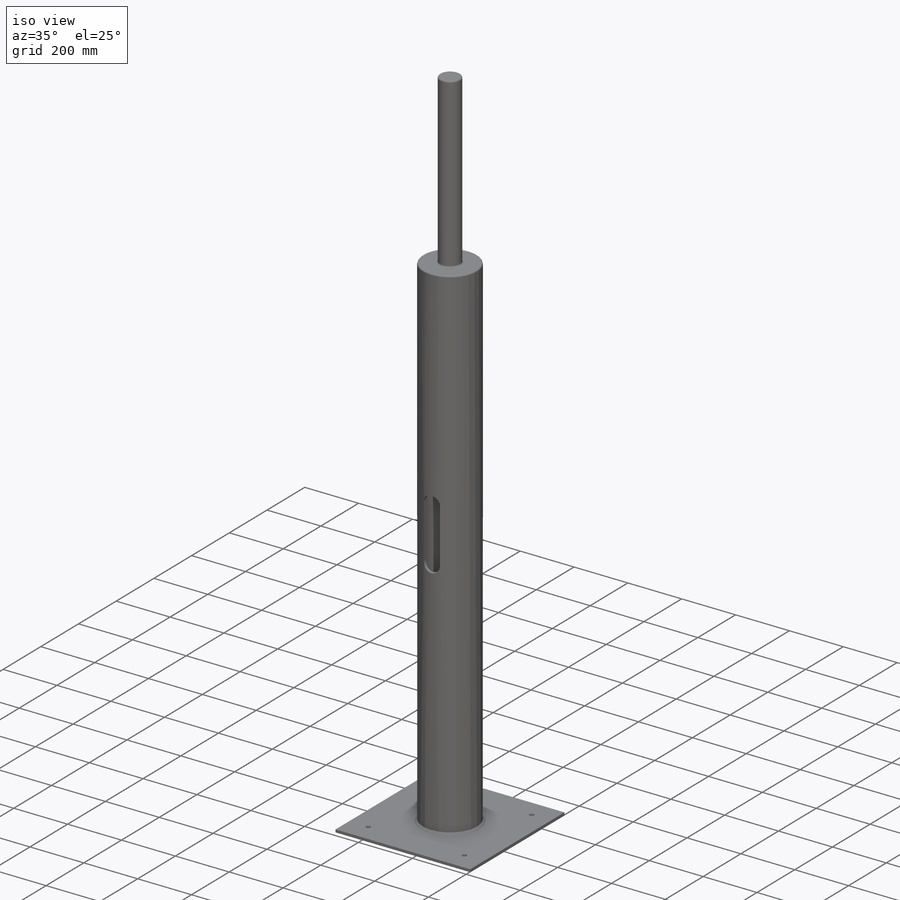
[diagram: iso view]
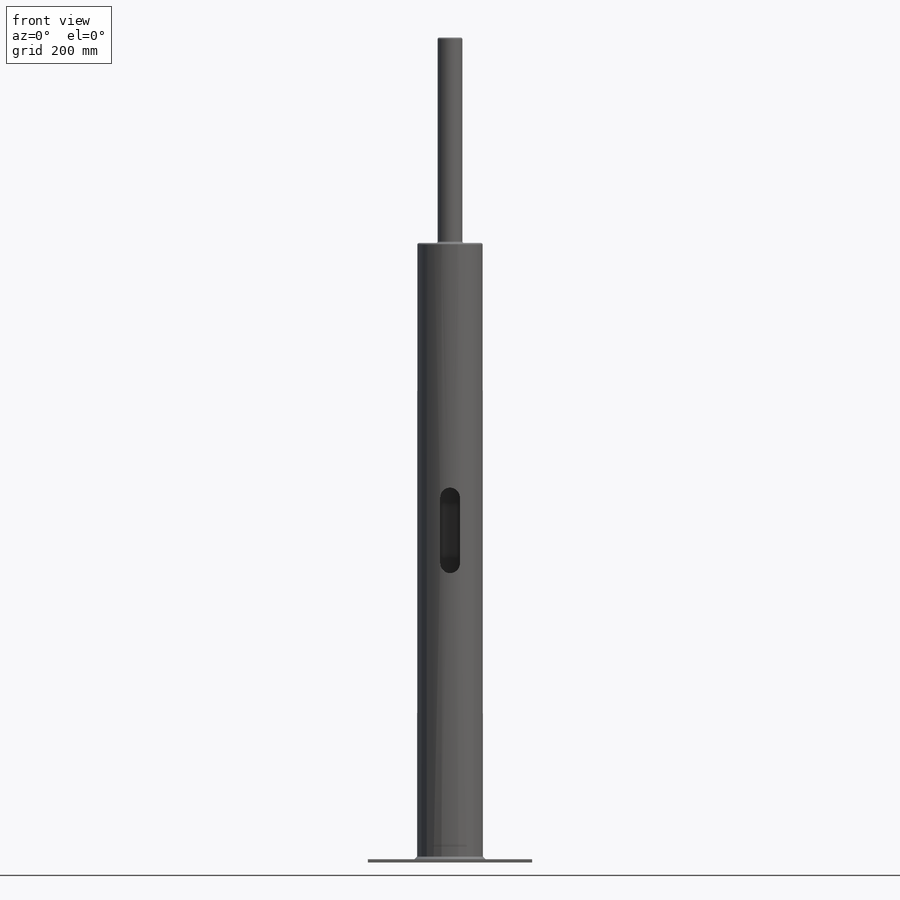
[diagram: front view]
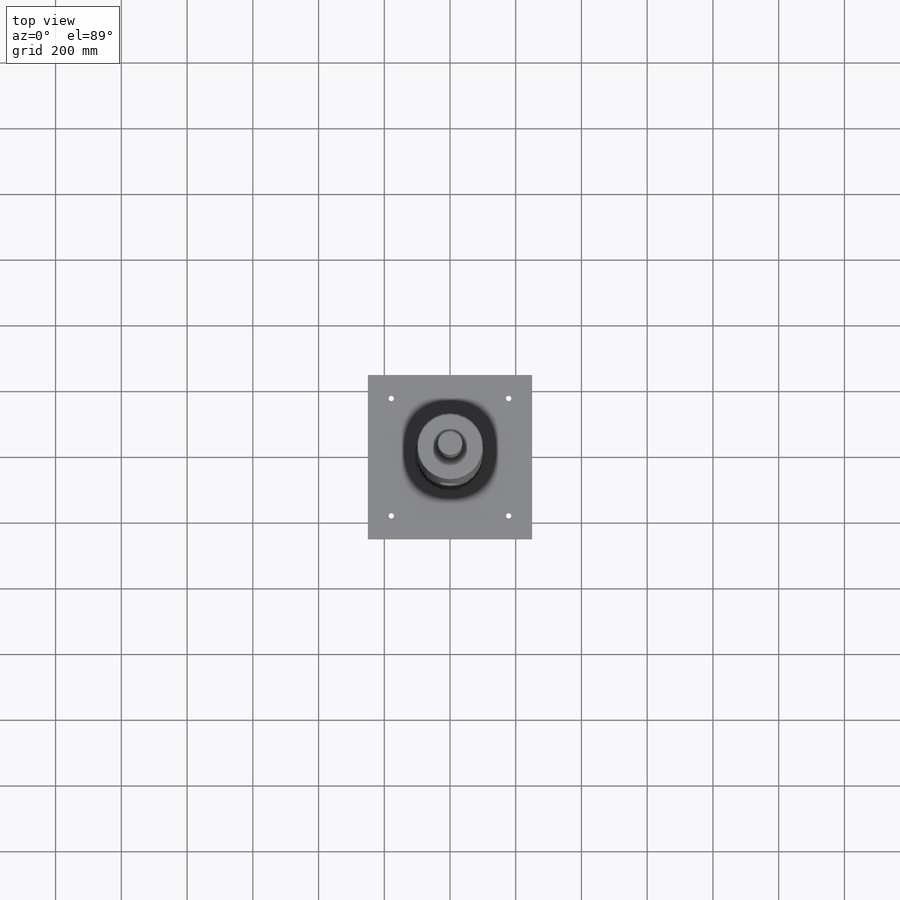
[diagram: top view]
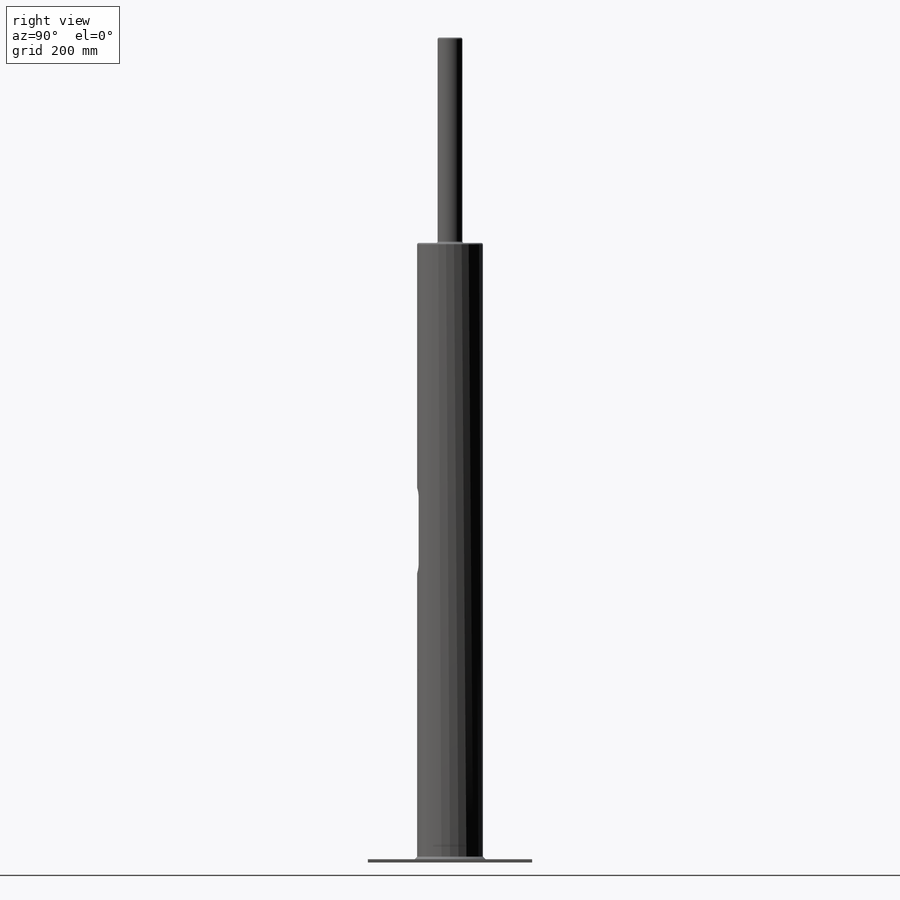
[diagram: right view]
SOLIDWORKS PART (.sldprt)
format: sldprt  version: not decoded by parser v0  size: 560,128 bytes
history: native  units: mm
features: sketch x5, material x1, revolve x1, shell x1, cut_extrude x1, fillet x1, extrude x1, hole x1 + 1 further entry (+17 scaffold rows collapsed)
feature tree (30):
  scaffold x17  (default folders/planes/origin — collapsed)
  material  "1060 Alloy"
  "Cut-List-Item2"
  sketch  "Sketch1"  dims[OVERALL HEIGHT=5000.0mm TOP HEIGHT[DRIVEN]=1250.0mm TOP DIAMETER[FIXED]=37.5mm BASE DIAMETER=170.0mm]
  revolve  "Revolve1"  Angle=360deg
  sketch  "Sketch2"  dims[SLOT=40.0mm D1=1000.0mm D2=300.0mm D3=200.0mm]
  shell  "Shell1"  Thickness=10mm
  cut_extrude  "Cut-Extrude1"  [1 undecoded]
  sketch  "Sketch3"  dims[BASE PLATE LENGTH=700.0mm]
  fillet  "Fillet2"  Radius=5mm
  extrude  "Boss-Extrude1"  Depth=16mm BASE PLATE THICKNESS=16mm
  hole  "Ø0.16 (0.16) Diameter Hole1"  Diameter=16mm Depth=16mm
  sketch  "Sketch5"  dims[c1.D1=50.0mm c1.D2=50.0mm c1.D3=100.0mm c1.D4=500.0mm c2.D3=500.0mm]
  sketch  "Sketch4"  dims[hole-wizard template sketch: 59 standard entries collapsed; hole parameters kept: c18.Thru Hole Dia.=16.0mm c18.Thru Hole Depth=16.0mm]
decode coverage: 10 of 11 modeling features carry decoded parameters; 1 rows unclassified (native names shown)
note: ~ marks probable driven/reference dimensions
note: 1 parameter value undecoded
note: suppression state not decoded; provenance and decode notes live in map.json
